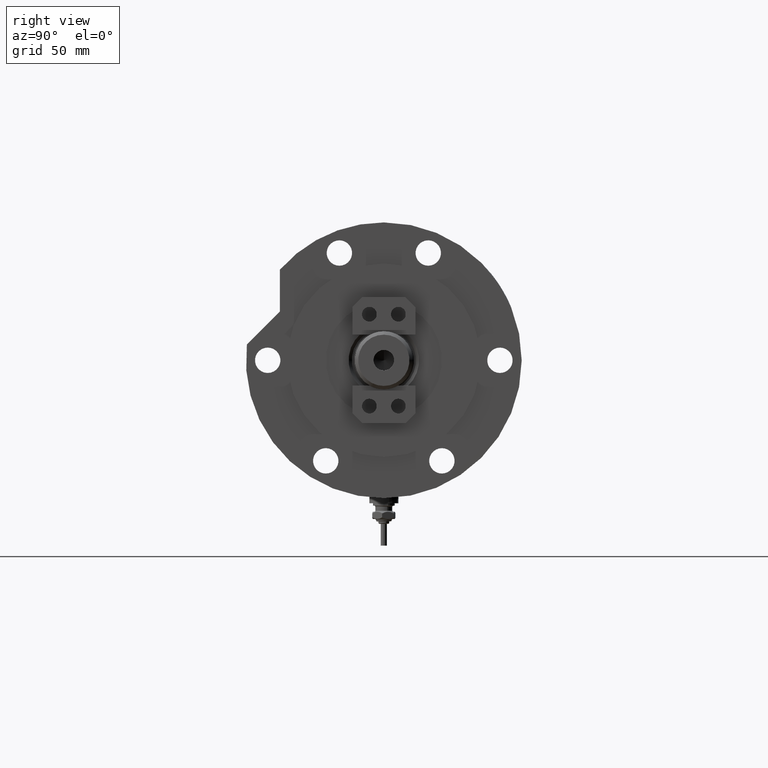
[diagram: clean part render]
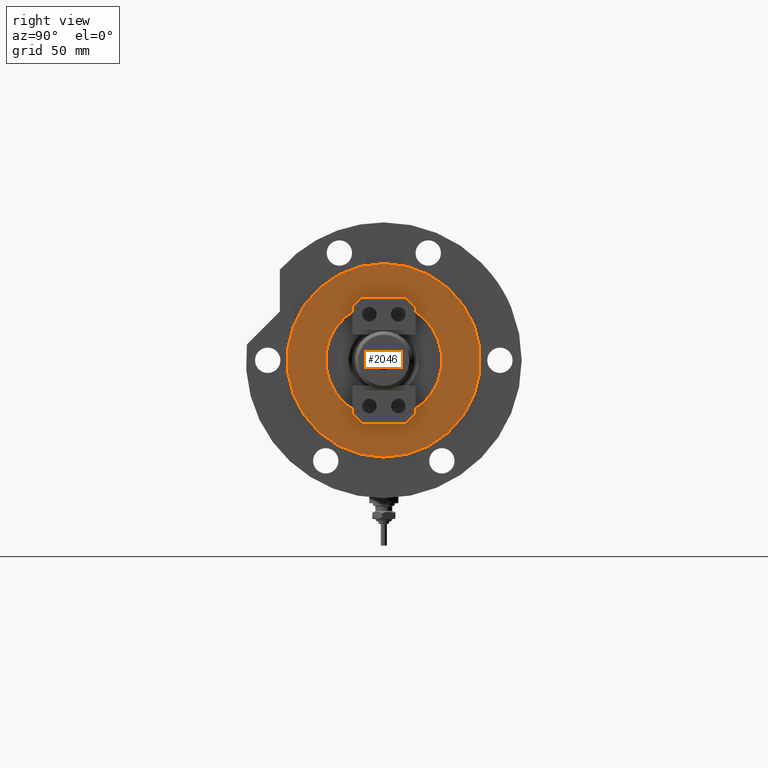
[diagram: same view with one face highlighted and labeled with its STEP entity id]
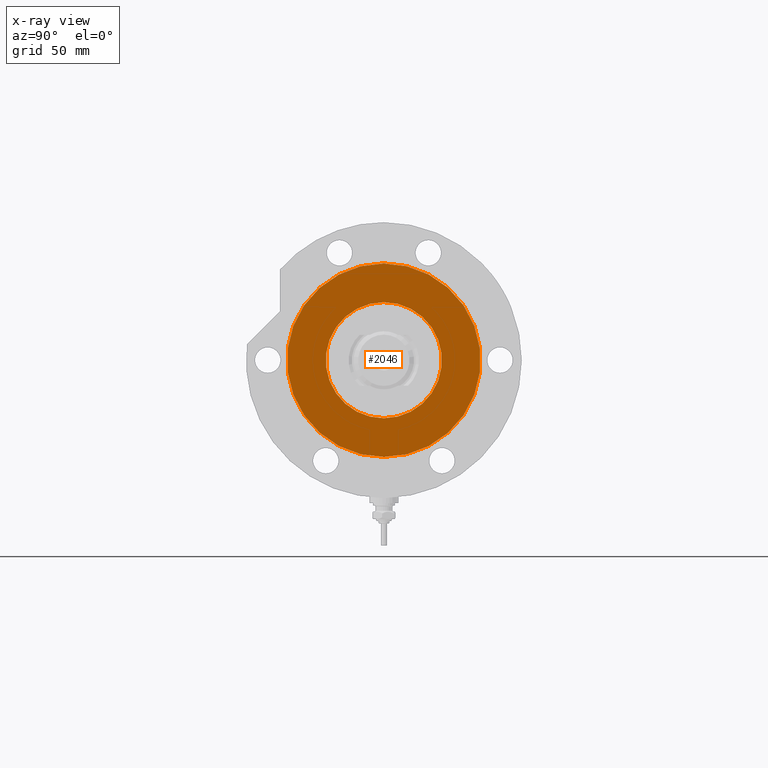
[diagram: x-ray of the same camera — body ghosted, the highlighted face saturated]
A machine part, right view. The second image highlights one B-rep face of the part: STEP entity #2046.
The next image is the same camera in x-ray: the body ghosted, the highlighted face saturated — about 0% of this face is hidden behind the body in this view.
In plain terms, the highlighted planar face has unit normal (1, 0, -0).
Its self-contained STEP definition (entity closure, byte-faithful):
#138 = VERTEX_POINT ( 'NONE', #4397 ) ;
#365 = VERTEX_POINT ( 'NONE', #2374 ) ;
#598 = DIRECTION ( 'NONE',  ( 1.000000000000000000, 0.000000000000000000, 0.000000000000000000 ) ) ;
#1113 = CARTESIAN_POINT ( 'NONE',  ( 24.00000000000000355, 0.000000000000000000, 20.99999999999999645 ) ) ;
#1387 = CIRCLE ( 'NONE', #3893, 24.00000000000000355 ) ;
#1468 = ORIENTED_EDGE ( 'NONE', *, *, #3337, .F. ) ;
#1663 = CIRCLE ( 'NONE', #6314, 40.00000000000000000 ) ;
#2046 = ADVANCED_FACE ( 'NONE', ( #4360, #6295 ), #7491, .T. ) ;
#2103 = VERTEX_POINT ( 'NONE', #1113 ) ;
#2374 = CARTESIAN_POINT ( 'NONE',  ( -40.00000000000000000, 0.000000000000000000, 20.99999999999999645 ) ) ;
#2432 = CARTESIAN_POINT ( 'NONE',  ( 0.000000000000000000, 0.000000000000000000, 20.99999999999999645 ) ) ;
#2448 = EDGE_CURVE ( 'NONE', #3029, #365, #3077, .T. ) ;
#2557 = DIRECTION ( 'NONE',  ( 0.000000000000000000, 0.000000000000000000, 1.000000000000000000 ) ) ;
#2889 = DIRECTION ( 'NONE',  ( 0.000000000000000000, 0.000000000000000000, 1.000000000000000000 ) ) ;
#3029 = VERTEX_POINT ( 'NONE', #6589 ) ;
#3077 = CIRCLE ( 'NONE', #6797, 40.00000000000000000 ) ;
#3173 = EDGE_LOOP ( 'NONE', ( #5472, #5438 ) ) ;
#3337 = EDGE_CURVE ( 'NONE', #138, #2103, #5738, .T. ) ;
#3503 = CARTESIAN_POINT ( 'NONE',  ( 0.000000000000000000, 0.000000000000000000, 20.99999999999999645 ) ) ;
#3769 = DIRECTION ( 'NONE',  ( 0.000000000000000000, 0.000000000000000000, 1.000000000000000000 ) ) ;
#3893 = AXIS2_PLACEMENT_3D ( 'NONE', #3503, #2889, #7986 ) ;
#4355 = DIRECTION ( 'NONE',  ( 0.000000000000000000, 0.000000000000000000, 1.000000000000000000 ) ) ;
#4360 = FACE_BOUND ( 'NONE', #7697, .T. ) ;
#4397 = CARTESIAN_POINT ( 'NONE',  ( -24.00000000000000355, 2.939152317953648289E-15, 20.99999999999999645 ) ) ;
#4411 = AXIS2_PLACEMENT_3D ( 'NONE', #7703, #4355, #7657 ) ;
#4592 = ORIENTED_EDGE ( 'NONE', *, *, #5395, .F. ) ;
#5074 = DIRECTION ( 'NONE',  ( 1.000000000000000000, 0.000000000000000000, -0.000000000000000000 ) ) ;
#5395 = EDGE_CURVE ( 'NONE', #2103, #138, #1387, .T. ) ;
#5438 = ORIENTED_EDGE ( 'NONE', *, *, #2448, .T. ) ;
#5472 = ORIENTED_EDGE ( 'NONE', *, *, #6081, .T. ) ;
#5477 = CARTESIAN_POINT ( 'NONE',  ( 0.000000000000000000, 0.000000000000000000, 20.99999999999999645 ) ) ;
#5557 = CARTESIAN_POINT ( 'NONE',  ( 0.000000000000000000, 0.000000000000000000, 20.99999999999999645 ) ) ;
#5738 = CIRCLE ( 'NONE', #4411, 24.00000000000000355 ) ;
#6081 = EDGE_CURVE ( 'NONE', #365, #3029, #1663, .T. ) ;
#6295 = FACE_OUTER_BOUND ( 'NONE', #3173, .T. ) ;
#6314 = AXIS2_PLACEMENT_3D ( 'NONE', #5477, #8089, #8053 ) ;
#6516 = AXIS2_PLACEMENT_3D ( 'NONE', #2432, #2557, #5074 ) ;
#6589 = CARTESIAN_POINT ( 'NONE',  ( 40.00000000000000000, 4.898587196589413026E-15, 20.99999999999999645 ) ) ;
#6797 = AXIS2_PLACEMENT_3D ( 'NONE', #5557, #3769, #598 ) ;
#7491 = PLANE ( 'NONE',  #6516 ) ;
#7657 = DIRECTION ( 'NONE',  ( 1.000000000000000000, 0.000000000000000000, 0.000000000000000000 ) ) ;
#7697 = EDGE_LOOP ( 'NONE', ( #4592, #1468 ) ) ;
#7703 = CARTESIAN_POINT ( 'NONE',  ( 0.000000000000000000, 0.000000000000000000, 20.99999999999999645 ) ) ;
#7986 = DIRECTION ( 'NONE',  ( 1.000000000000000000, 0.000000000000000000, 0.000000000000000000 ) ) ;
#8053 = DIRECTION ( 'NONE',  ( 1.000000000000000000, 0.000000000000000000, 0.000000000000000000 ) ) ;
#8089 = DIRECTION ( 'NONE',  ( 0.000000000000000000, 0.000000000000000000, 1.000000000000000000 ) ) ;